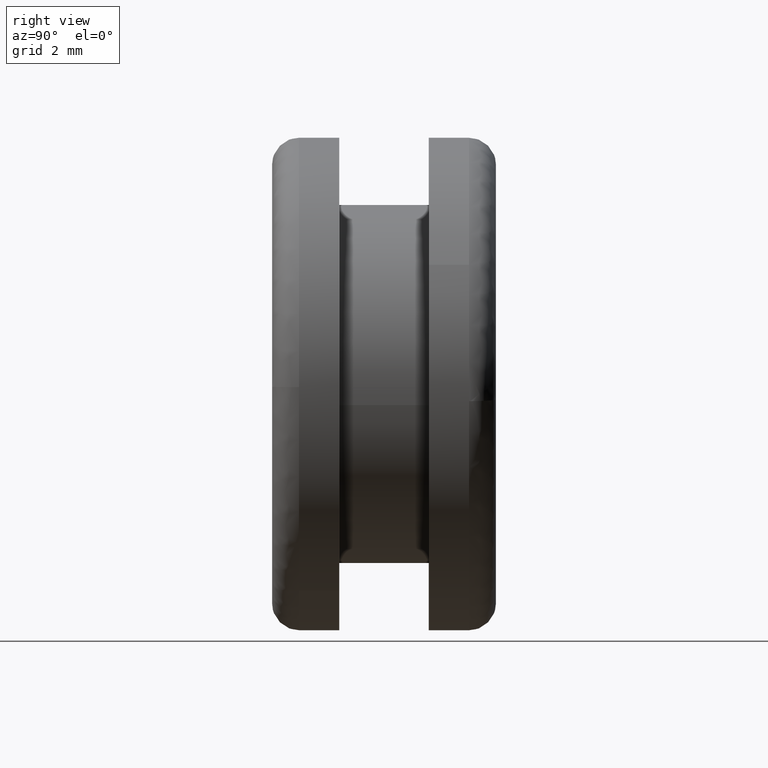
[diagram: clean part render]
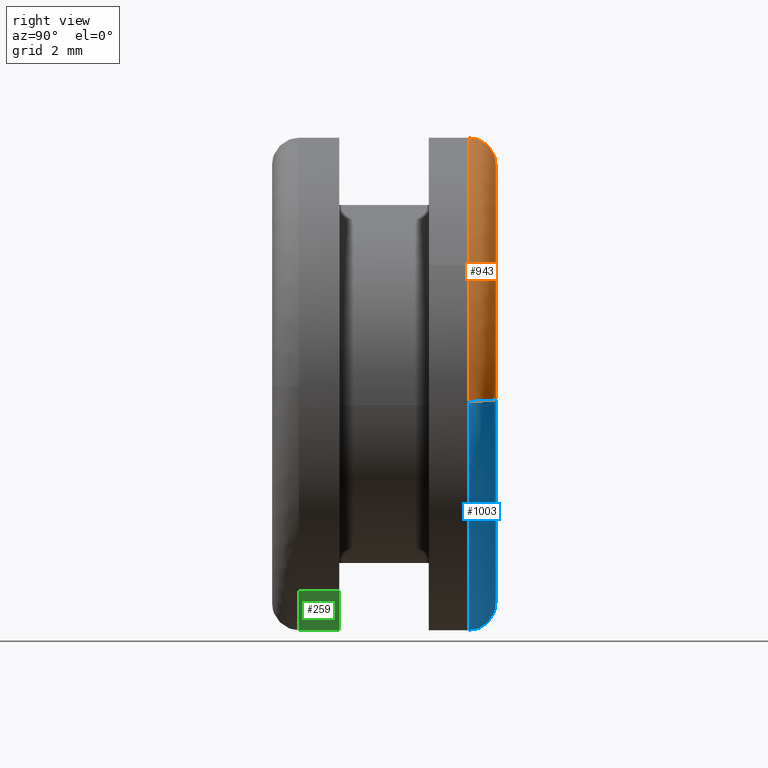
[diagram: same view with three faces highlighted in distinct colors, each labeled with its STEP entity id]
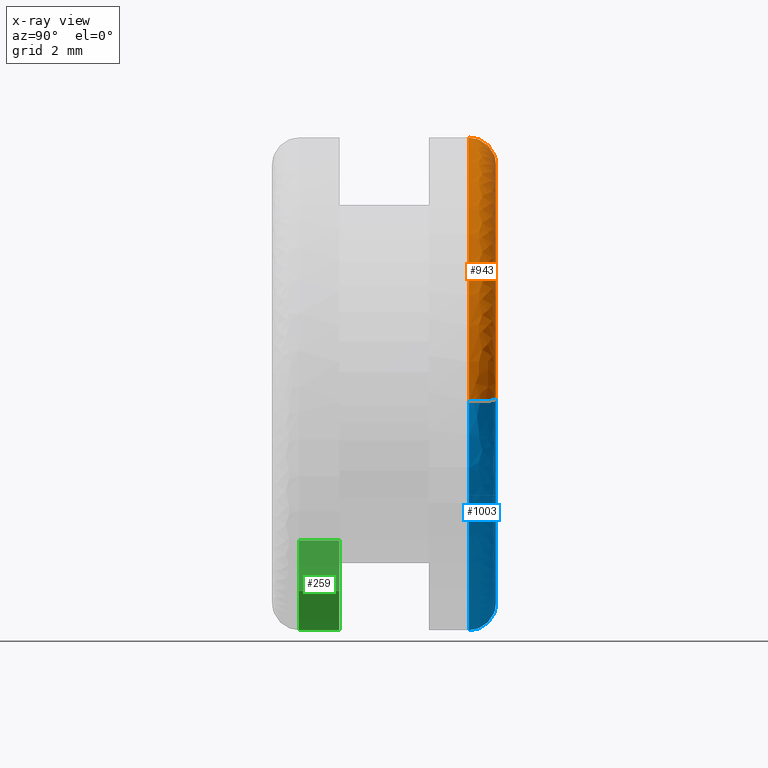
[diagram: x-ray of the same camera — body ghosted, the three highlighted faces saturated]
A machine part, right view with three faces highlighted in distinct colors.
The next image is the same camera in x-ray (body ghosted, the three faces saturated) — at least one of them is partly hidden behind the body in this view.
Their STEP definitions:

[orange] entity #943 — the highlighted face is a freeform B-spline surface patch.
#464=CARTESIAN_POINT('',(4.812205843439302,4.400000000000018,2.663207637486718));
#465=VERTEX_POINT('',#464);
#466=CARTESIAN_POINT('',(0.0,4.400000000000000,5.500000000000000));
#467=VERTEX_POINT('',#466);
#468=CARTESIAN_POINT('',(4.812205843439302,4.400000000000018,2.663207637486718));
#469=CARTESIAN_POINT('',(3.242246591569628,4.400000000000000,5.500000000000001));
#470=CARTESIAN_POINT('',(0.0,4.400000000000000,5.500000000000000));
#478=(BOUNDED_CURVE()B_SPLINE_CURVE(2,(#468,#469,#470),.UNSPECIFIED.,.F.,.U.)B_SPLINE_CURVE_WITH_KNOTS((3,3),(0.332484260513294,0.500000000000000),.UNSPECIFIED.)CURVE()GEOMETRIC_REPRESENTATION_ITEM()RATIONAL_B_SPLINE_CURVE((0.870495160132448,0.803743103439292,1.0))REPRESENTATION_ITEM(''));
#479=EDGE_CURVE('',#465,#467,#478,.T.);
#481=CARTESIAN_POINT('',(-3.715745918085256,4.400000000007310,4.055025557530997));
#482=VERTEX_POINT('',#481);
#483=CARTESIAN_POINT('',(0.0,4.400000000000000,5.500000000000000));
#484=CARTESIAN_POINT('',(-2.138832675736071,4.400000000000001,5.500000000000000));
#485=CARTESIAN_POINT('',(-3.715745918085256,4.400000000007311,4.055025557530997));
#493=(BOUNDED_CURVE()B_SPLINE_CURVE(2,(#483,#484,#485),.UNSPECIFIED.,.F.,.U.)B_SPLINE_CURVE_WITH_KNOTS((3,3),(0.500000000000000,0.618415192420787),.UNSPECIFIED.)CURVE()GEOMETRIC_REPRESENTATION_ITEM()RATIONAL_B_SPLINE_CURVE((1.0,0.861267972541846,0.853959782894757))REPRESENTATION_ITEM(''));
#494=EDGE_CURVE('',#467,#482,#493,.T.);
#563=CARTESIAN_POINT('',(5.486611206122208,4.400000000027498,-0.383532883667365));
#564=VERTEX_POINT('',#563);
#565=CARTESIAN_POINT('',(5.486611206122208,4.400000000027498,-0.383532883667365));
#566=CARTESIAN_POINT('',(5.499999999999999,4.400000000000001,-0.192000137313358));
#567=CARTESIAN_POINT('',(5.500000000000000,4.400000000000000,-1.928755E-016));
#568=CARTESIAN_POINT('',(5.500000000000000,4.400000000000000,1.420417923047572));
#569=CARTESIAN_POINT('',(4.812205843439302,4.400000000000018,2.663207637486718));
#577=(BOUNDED_CURVE()B_SPLINE_CURVE(2,(#565,#566,#567,#568,#569),.UNSPECIFIED.,.F.,.U.)B_SPLINE_CURVE_WITH_KNOTS((3,2,3),(0.237833686534982,0.250000000000000,0.332484260513294),.UNSPECIFIED.)CURVE()GEOMETRIC_REPRESENTATION_ITEM()RATIONAL_B_SPLINE_CURVE((0.972879876386744,0.985746277152550,1.0,0.903363677747256,0.870495160132448))REPRESENTATION_ITEM(''));
#578=EDGE_CURVE('',#564,#465,#577,.T.);
#614=CARTESIAN_POINT('',(-5.499565743120951,4.400000000027498,0.069113219361356));
#615=VERTEX_POINT('',#614);
#616=CARTESIAN_POINT('',(-3.715745918085256,4.400000000007311,4.055025557530997));
#617=CARTESIAN_POINT('',(-5.469672098197592,4.400000000015454,2.447848677929653));
#618=CARTESIAN_POINT('',(-5.499565743120951,4.400000000027498,0.069113219361356));
#626=(BOUNDED_CURVE()B_SPLINE_CURVE(2,(#616,#617,#618),.UNSPECIFIED.,.F.,.U.)B_SPLINE_CURVE_WITH_KNOTS((3,3),(0.618415192420787,0.747784295921543),.UNSPECIFIED.)CURVE()GEOMETRIC_REPRESENTATION_ITEM()RATIONAL_B_SPLINE_CURVE((0.853959782894757,0.845975554490198,0.994854295643585))REPRESENTATION_ITEM(''));
#627=EDGE_CURVE('',#482,#615,#626,.T.);
#848=CARTESIAN_POINT('',(4.846450912742304,4.998547604767667,-0.338783221479301));
#849=CARTESIAN_POINT('',(4.856146733633645,4.998547604767665,-0.200080012378673));
#850=CARTESIAN_POINT('',(4.857893936947161,4.998547604767665,-0.061049309157583));
#851=CARTESIAN_POINT('',(4.918943246104744,4.998547604767664,4.796844627789578));
#852=CARTESIAN_POINT('',(0.061049309157583,4.998547604767665,4.857893936947161));
#853=CARTESIAN_POINT('',(-4.796844627789578,4.998547604767664,4.918943246104744));
#854=CARTESIAN_POINT('',(-4.857893936947161,4.998547604767665,0.061049309157584));
#855=CARTESIAN_POINT('',(5.533020207342917,5.046522521817598,-0.386776724680173));
#856=CARTESIAN_POINT('',(5.544089580351014,5.046522521817596,-0.228424216299388));
#857=CARTESIAN_POINT('',(5.546084300077691,5.046522521817598,-0.069697819558044));
#858=CARTESIAN_POINT('',(5.615782119635735,5.046522521817598,5.476386480519645));
#859=CARTESIAN_POINT('',(0.069697819558044,5.046522521817598,5.546084300077691));
#860=CARTESIAN_POINT('',(-5.476386480519645,5.046522521817598,5.615782119635735));
#861=CARTESIAN_POINT('',(-5.546084300077691,5.046522521817598,0.069697819558045));
#862=CARTESIAN_POINT('',(5.485162386431196,4.358277796135970,-0.383431302012458));
#863=CARTESIAN_POINT('',(5.496136014972224,4.358277796135971,-0.226448462583353));
#864=CARTESIAN_POINT('',(5.498113481384098,4.358277796135970,-0.069094968738537));
#865=CARTESIAN_POINT('',(5.567208450122635,4.358277796135969,5.429018512645561));
#866=CARTESIAN_POINT('',(0.069094968738537,4.358277796135970,5.498113481384098));
#867=CARTESIAN_POINT('',(-5.429018512645559,4.358277796135969,5.567208450122635));
#868=CARTESIAN_POINT('',(-5.498113481384098,4.358277796135970,0.069094968738538));
#876=(BOUNDED_SURFACE()B_SPLINE_SURFACE(2,2,((#848,#855,#862),(#849,#856,#863),(#850,#857,#864),(#851,#858,#865),(#852,#859,#866),(#853,#860,#867),(#854,#861,#868)),.UNSPECIFIED.,.F.,.F.,.U.)B_SPLINE_SURFACE_WITH_KNOTS((3,2,2,3),(3,3),(0.0,0.364411332317165,9.474703328497780,18.584995324678399),(0.0,1.093424524682853),.UNSPECIFIED.)GEOMETRIC_REPRESENTATION_ITEM()RATIONAL_B_SPLINE_SURFACE(((0.889999441113874,0.584039716581436,0.889999258193402),(0.899813013694379,0.590479626410364,0.899812828756935),(0.910479939527730,0.597479527817840,0.910479752397927),(0.643806539374376,0.422481825740131,0.643806407053623),(0.910479939527730,0.597479527817840,0.910479752397927),(0.643806539374376,0.422481825740131,0.643806407053623),(0.910479939527730,0.597479527817840,0.910479752397927)))REPRESENTATION_ITEM('')SURFACE());
#877=ORIENTED_EDGE('',*,*,#479,.F.);
#878=ORIENTED_EDGE('',*,*,#578,.F.);
#879=CARTESIAN_POINT('',(4.888071801949449,5.0,-0.341692932736474));
#880=VERTEX_POINT('',#879);
#881=CARTESIAN_POINT('',(4.888071801949450,5.0,-0.341692932736474));
#882=CARTESIAN_POINT('',(5.486611206067517,4.999999999735635,-0.383532883661093));
#883=CARTESIAN_POINT('',(5.486611206122208,4.400000000027498,-0.383532883667365));
#891=(BOUNDED_CURVE()B_SPLINE_CURVE(2,(#881,#882,#883),.UNSPECIFIED.,.F.,.U.)B_SPLINE_CURVE_WITH_KNOTS((3,3),(-1.725134642829971,-0.274865356812180),.UNSPECIFIED.)CURVE()GEOMETRIC_REPRESENTATION_ITEM()RATIONAL_B_SPLINE_CURVE((0.863472075215113,0.610566959956446,0.863472075339920))REPRESENTATION_ITEM(''));
#892=EDGE_CURVE('',#880,#564,#891,.T.);
#893=ORIENTED_EDGE('',*,*,#892,.F.);
#894=CARTESIAN_POINT('',(0.0,5.0,4.900000000000000));
#895=VERTEX_POINT('',#894);
#896=CARTESIAN_POINT('',(4.888071801949449,5.000000000000001,-0.341692932736474));
#897=CARTESIAN_POINT('',(4.900000000000000,5.0,-0.171054667793707));
#898=CARTESIAN_POINT('',(4.900000000000000,5.0,-1.928755E-016));
#899=CARTESIAN_POINT('',(4.899999999999999,4.999999999999999,4.899999999999999));
#900=CARTESIAN_POINT('',(0.0,5.0,4.900000000000000));
#908=(BOUNDED_CURVE()B_SPLINE_CURVE(2,(#896,#897,#898,#899,#900),.UNSPECIFIED.,.F.,.U.)B_SPLINE_CURVE_WITH_KNOTS((3,2,3),(0.237833686534600,0.250000000000000,0.500000000000000),.UNSPECIFIED.)CURVE()GEOMETRIC_REPRESENTATION_ITEM()RATIONAL_B_SPLINE_CURVE((0.972879876385937,0.985746277152103,1.0,0.707106781186547,1.0))REPRESENTATION_ITEM(''));
#909=EDGE_CURVE('',#880,#895,#908,.T.);
#910=ORIENTED_EDGE('',*,*,#909,.T.);
#911=CARTESIAN_POINT('',(-4.899613116827728,5.0,0.061573595447684));
#912=VERTEX_POINT('',#911);
#913=CARTESIAN_POINT('',(0.0,5.0,4.900000000000000));
#914=CARTESIAN_POINT('',(-4.838808456513483,5.0,4.900000000000000));
#915=CARTESIAN_POINT('',(-4.899613116827728,5.000000000000001,0.061573595447684));
#923=(BOUNDED_CURVE()B_SPLINE_CURVE(2,(#913,#914,#915),.UNSPECIFIED.,.F.,.U.)B_SPLINE_CURVE_WITH_KNOTS((3,3),(0.500000000000000,0.747784295920552),.UNSPECIFIED.)CURVE()GEOMETRIC_REPRESENTATION_ITEM()RATIONAL_B_SPLINE_CURVE((1.0,0.709702639985618,0.994854295641306))REPRESENTATION_ITEM(''));
#924=EDGE_CURVE('',#895,#912,#923,.T.);
#925=ORIENTED_EDGE('',*,*,#924,.T.);
#926=CARTESIAN_POINT('',(-4.899613116827728,5.0,0.061573595447684));
#927=CARTESIAN_POINT('',(-5.499565743065999,4.999999999541493,0.069113219357744));
#928=CARTESIAN_POINT('',(-5.499565743120952,4.400000000027498,0.069113219361356));
#936=(BOUNDED_CURVE()B_SPLINE_CURVE(2,(#926,#927,#928),.UNSPECIFIED.,.F.,.U.)B_SPLINE_CURVE_WITH_KNOTS((3,3),(-1.725134642498153,-0.274865356812179),.UNSPECIFIED.)CURVE()GEOMETRIC_REPRESENTATION_ITEM()RATIONAL_B_SPLINE_CURVE((0.883342149373452,0.624617224284152,0.883342149619523))REPRESENTATION_ITEM(''));
#937=EDGE_CURVE('',#912,#615,#936,.T.);
#938=ORIENTED_EDGE('',*,*,#937,.T.);
#939=ORIENTED_EDGE('',*,*,#627,.F.);
#940=ORIENTED_EDGE('',*,*,#494,.F.);
#941=EDGE_LOOP('',(#877,#878,#893,#910,#925,#938,#939,#940));
#942=FACE_OUTER_BOUND('',#941,.T.);
#943=ADVANCED_FACE('',(#942),#876,.T.);

[blue] entity #1003 — the highlighted face is a freeform B-spline surface patch.
#563=CARTESIAN_POINT('',(5.486611206122208,4.400000000027498,-0.383532883667365));
#564=VERTEX_POINT('',#563);
#614=CARTESIAN_POINT('',(-5.499565743120951,4.400000000027498,0.069113219361356));
#615=VERTEX_POINT('',#614);
#629=CARTESIAN_POINT('',(0.0,4.400000000000000,-5.500000000000000));
#630=VERTEX_POINT('',#629);
#631=CARTESIAN_POINT('',(-5.499565743120951,4.400000000027498,0.069113219361356));
#632=CARTESIAN_POINT('',(-5.500000000000000,4.400000000000000,0.034557973958313));
#633=CARTESIAN_POINT('',(-5.500000000000000,4.400000000000000,-1.928755E-016));
#634=CARTESIAN_POINT('',(-5.500000000000001,4.400000000000001,-5.500000000000001));
#635=CARTESIAN_POINT('',(0.0,4.400000000000000,-5.500000000000000));
#643=(BOUNDED_CURVE()B_SPLINE_CURVE(2,(#631,#632,#633,#634,#635),.UNSPECIFIED.,.F.,.U.)B_SPLINE_CURVE_WITH_KNOTS((3,2,3),(0.747784295921542,0.750000000000000,1.0),.UNSPECIFIED.)CURVE()GEOMETRIC_REPRESENTATION_ITEM()RATIONAL_B_SPLINE_CURVE((0.994854295643583,0.997404141202089,1.0,0.707106781186548,1.0))REPRESENTATION_ITEM(''));
#644=EDGE_CURVE('',#615,#630,#643,.T.);
#646=CARTESIAN_POINT('',(0.0,4.400000000000000,-5.500000000000000));
#647=CARTESIAN_POINT('',(5.128952659961843,4.400000000000001,-5.500000000000000));
#648=CARTESIAN_POINT('',(5.486611206122208,4.400000000027498,-0.383532883667365));
#656=(BOUNDED_CURVE()B_SPLINE_CURVE(2,(#646,#647,#648),.UNSPECIFIED.,.F.,.U.)B_SPLINE_CURVE_WITH_KNOTS((3,3),(0.0,0.237833686534982),.UNSPECIFIED.)CURVE()GEOMETRIC_REPRESENTATION_ITEM()RATIONAL_B_SPLINE_CURVE((1.0,0.721360504033998,0.972879876386744))REPRESENTATION_ITEM(''));
#657=EDGE_CURVE('',#630,#564,#656,.T.);
#879=CARTESIAN_POINT('',(4.888071801949449,5.0,-0.341692932736474));
#880=VERTEX_POINT('',#879);
#881=CARTESIAN_POINT('',(4.888071801949450,5.0,-0.341692932736474));
#882=CARTESIAN_POINT('',(5.486611206067517,4.999999999735635,-0.383532883661093));
#883=CARTESIAN_POINT('',(5.486611206122208,4.400000000027498,-0.383532883667365));
#891=(BOUNDED_CURVE()B_SPLINE_CURVE(2,(#881,#882,#883),.UNSPECIFIED.,.F.,.U.)B_SPLINE_CURVE_WITH_KNOTS((3,3),(-1.725134642829971,-0.274865356812180),.UNSPECIFIED.)CURVE()GEOMETRIC_REPRESENTATION_ITEM()RATIONAL_B_SPLINE_CURVE((0.863472075215113,0.610566959956446,0.863472075339920))REPRESENTATION_ITEM(''));
#892=EDGE_CURVE('',#880,#564,#891,.T.);
#911=CARTESIAN_POINT('',(-4.899613116827728,5.0,0.061573595447684));
#912=VERTEX_POINT('',#911);
#926=CARTESIAN_POINT('',(-4.899613116827728,5.0,0.061573595447684));
#927=CARTESIAN_POINT('',(-5.499565743065999,4.999999999541493,0.069113219357744));
#928=CARTESIAN_POINT('',(-5.499565743120952,4.400000000027498,0.069113219361356));
#936=(BOUNDED_CURVE()B_SPLINE_CURVE(2,(#926,#927,#928),.UNSPECIFIED.,.F.,.U.)B_SPLINE_CURVE_WITH_KNOTS((3,3),(-1.725134642498153,-0.274865356812179),.UNSPECIFIED.)CURVE()GEOMETRIC_REPRESENTATION_ITEM()RATIONAL_B_SPLINE_CURVE((0.883342149373452,0.624617224284152,0.883342149619523))REPRESENTATION_ITEM(''));
#937=EDGE_CURVE('',#912,#615,#936,.T.);
#944=CARTESIAN_POINT('',(-4.857893936947161,4.998547604767665,0.061049309157582));
#945=CARTESIAN_POINT('',(-4.918943246104742,4.998547604767664,-4.796844627789580));
#946=CARTESIAN_POINT('',(-0.061049309157583,4.998547604767665,-4.857893936947161));
#947=CARTESIAN_POINT('',(4.526519540871593,4.998547604767666,-4.915546062053692));
#948=CARTESIAN_POINT('',(4.846450894045051,4.998547604767665,-0.338783488952053));
#949=CARTESIAN_POINT('',(-5.546084300077691,5.046522521817598,0.069697819558043));
#950=CARTESIAN_POINT('',(-5.615782119635735,5.046522521817598,-5.476386480519647));
#951=CARTESIAN_POINT('',(-0.069697819558044,5.046522521817598,-5.546084300077691));
#952=CARTESIAN_POINT('',(5.167765967200014,5.046522521817598,-5.611903675730915));
#953=CARTESIAN_POINT('',(5.533020185996930,5.046522521817599,-0.386777030044277));
#954=CARTESIAN_POINT('',(-5.498113481384098,4.358277796135970,0.069094968738536));
#955=CARTESIAN_POINT('',(-5.567208450122635,4.358277796135969,-5.429018512645564));
#956=CARTESIAN_POINT('',(-0.069094968738537,4.358277796135970,-5.498113481384098));
#957=CARTESIAN_POINT('',(5.123067410371367,4.358277796135968,-5.563363552792171));
#958=CARTESIAN_POINT('',(5.485162365269843,4.358277796135969,-0.383431604735318));
#966=(BOUNDED_SURFACE()B_SPLINE_SURFACE(2,2,((#944,#949,#954),(#945,#950,#955),(#946,#951,#956),(#947,#952,#957),(#948,#953,#958)),.UNSPECIFIED.,.F.,.F.,.U.)B_SPLINE_SURFACE_WITH_KNOTS((3,2,3),(3,3),(0.0,9.110291996180614,17.856172312514001),(0.0,1.093424524682851),.UNSPECIFIED.)GEOMETRIC_REPRESENTATION_ITEM()RATIONAL_B_SPLINE_SURFACE(((0.910479939527730,0.597479527817840,0.910479752397927),(0.643806539374376,0.422481825740131,0.643806407053623),(0.910479939527730,0.597479527817840,0.910479752397927),(0.654473475380510,0.429481733823239,0.654473340867395),(0.889999422395953,0.584039704298272,0.889999239475484)))REPRESENTATION_ITEM('')SURFACE());
#967=ORIENTED_EDGE('',*,*,#657,.F.);
#968=ORIENTED_EDGE('',*,*,#644,.F.);
#969=ORIENTED_EDGE('',*,*,#937,.F.);
#970=CARTESIAN_POINT('',(0.0,5.0,-4.900000000000000));
#971=VERTEX_POINT('',#970);
#972=CARTESIAN_POINT('',(-4.899613116827728,5.0,0.061573595447684));
#973=CARTESIAN_POINT('',(-4.900000000000000,5.000000000000001,0.030788013176639));
#974=CARTESIAN_POINT('',(-4.900000000000000,5.0,-1.928755E-016));
#975=CARTESIAN_POINT('',(-4.899999999999999,4.999999999999999,-4.899999999999999));
#976=CARTESIAN_POINT('',(0.0,5.0,-4.900000000000000));
#984=(BOUNDED_CURVE()B_SPLINE_CURVE(2,(#972,#973,#974,#975,#976),.UNSPECIFIED.,.F.,.U.)B_SPLINE_CURVE_WITH_KNOTS((3,2,3),(0.747784295920553,0.750000000000000,1.0),.UNSPECIFIED.)CURVE()GEOMETRIC_REPRESENTATION_ITEM()RATIONAL_B_SPLINE_CURVE((0.994854295641306,0.997404141200930,1.0,0.707106781186547,1.0))REPRESENTATION_ITEM(''));
#985=EDGE_CURVE('',#912,#971,#984,.T.);
#986=ORIENTED_EDGE('',*,*,#985,.T.);
#987=CARTESIAN_POINT('',(0.0,5.0,-4.900000000000000));
#988=CARTESIAN_POINT('',(4.569430551592206,4.999999999999999,-4.900000000000000));
#989=CARTESIAN_POINT('',(4.888071801949449,5.0,-0.341692932736474));
#997=(BOUNDED_CURVE()B_SPLINE_CURVE(2,(#987,#988,#989),.UNSPECIFIED.,.F.,.U.)B_SPLINE_CURVE_WITH_KNOTS((3,3),(0.0,0.237833686534600),.UNSPECIFIED.)CURVE()GEOMETRIC_REPRESENTATION_ITEM()RATIONAL_B_SPLINE_CURVE((1.0,0.721360504034445,0.972879876385937))REPRESENTATION_ITEM(''));
#998=EDGE_CURVE('',#971,#880,#997,.T.);
#999=ORIENTED_EDGE('',*,*,#998,.T.);
#1000=ORIENTED_EDGE('',*,*,#892,.T.);
#1001=EDGE_LOOP('',(#967,#968,#969,#986,#999,#1000));
#1002=FACE_OUTER_BOUND('',#1001,.T.);
#1003=ADVANCED_FACE('',(#1002),#966,.T.);

[green] entity #259 — the highlighted face is a freeform B-spline surface patch.
#70=CARTESIAN_POINT('',(2.985007899875340,0.599999999998220,-4.619494327053410));
#71=VERTEX_POINT('',#70);
#87=CARTESIAN_POINT('',(2.985007905691947,1.500000000000000,-4.619494323295093));
#88=VERTEX_POINT('',#87);
#89=CARTESIAN_POINT('',(2.985007905691947,1.500000000000000,-4.619494323295093));
#90=CARTESIAN_POINT('',(2.985007899875340,0.599999999998220,-4.619494327053410));
#91=QUASI_UNIFORM_CURVE('',1,(#89,#90),.UNSPECIFIED.,.F.,.U.);
#92=EDGE_CURVE('',#88,#71,#91,.T.);
#111=CARTESIAN_POINT('',(-4.243935634971063,1.500000000000000,-3.498429694337490));
#112=VERTEX_POINT('',#111);
#128=CARTESIAN_POINT('',(-4.243935646368156,0.599999999999966,-3.498429680511704));
#129=VERTEX_POINT('',#128);
#130=CARTESIAN_POINT('',(-4.243935634971063,1.500000000000000,-3.498429694337490));
#131=CARTESIAN_POINT('',(-4.243935646368156,0.599999999999966,-3.498429680511704));
#132=QUASI_UNIFORM_CURVE('',1,(#130,#131),.UNSPECIFIED.,.F.,.U.);
#133=EDGE_CURVE('',#112,#129,#132,.T.);
#185=CARTESIAN_POINT('',(-4.243935208632458,1.522500000000269,-3.498430211527701));
#186=CARTESIAN_POINT('',(-1.128612139344792,1.522500000000270,-7.277619293662170));
#187=CARTESIAN_POINT('',(2.985008738409040,1.522500000000269,-4.619493785213013));
#188=CARTESIAN_POINT('',(-4.243935208632458,0.576937499988974,-3.498430211527701));
#189=CARTESIAN_POINT('',(-1.128612139344792,0.576937499988974,-7.277619293662170));
#190=CARTESIAN_POINT('',(2.985008738409040,0.576937499988974,-4.619493785213013));
#198=(BOUNDED_SURFACE()B_SPLINE_SURFACE(2,1,((#185,#188),(#186,#189),(#187,#190)),.UNSPECIFIED.,.F.,.F.,.U.)B_SPLINE_SURFACE_WITH_KNOTS((3,3),(2,2),(0.0,8.374486759889559),(0.0,1.0),.UNSPECIFIED.)GEOMETRIC_REPRESENTATION_ITEM()RATIONAL_B_SPLINE_SURFACE(((1.0,1.0),(0.730538238691624,0.730538238691624),(0.956886118190660,0.956886118190660)))REPRESENTATION_ITEM('')SURFACE());
#199=CARTESIAN_POINT('',(0.0,0.599999999999979,-5.500000000000000));
#200=VERTEX_POINT('',#199);
#201=CARTESIAN_POINT('',(0.0,0.599999999999979,-5.500000000000000));
#202=CARTESIAN_POINT('',(1.622367425457560,0.599999999999979,-5.500000000000000));
#203=CARTESIAN_POINT('',(2.985007899875340,0.599999999998220,-4.619494327053409));
#211=(BOUNDED_CURVE()B_SPLINE_CURVE(2,(#201,#202,#203),.UNSPECIFIED.,.F.,.U.)B_SPLINE_CURVE_WITH_KNOTS((3,3),(0.0,0.092934687548090),.UNSPECIFIED.)CURVE()GEOMETRIC_REPRESENTATION_ITEM()RATIONAL_B_SPLINE_CURVE((1.0,0.891120240898469,0.863190132936235))REPRESENTATION_ITEM(''));
#212=EDGE_CURVE('',#200,#71,#211,.T.);
#213=ORIENTED_EDGE('',*,*,#212,.F.);
#214=CARTESIAN_POINT('',(-4.243935646368156,0.599999999999966,-3.498429680511704));
#215=CARTESIAN_POINT('',(-2.593969244496337,0.599999999999979,-5.500000000000001));
#216=CARTESIAN_POINT('',(0.0,0.599999999999979,-5.500000000000000));
#224=(BOUNDED_CURVE()B_SPLINE_CURVE(2,(#214,#215,#216),.UNSPECIFIED.,.F.,.U.)B_SPLINE_CURVE_WITH_KNOTS((3,3),(0.860504588013076,1.0),.UNSPECIFIED.)CURVE()GEOMETRIC_REPRESENTATION_ITEM()RATIONAL_B_SPLINE_CURVE((0.855522729322274,0.836570959093765,1.0))REPRESENTATION_ITEM(''));
#225=EDGE_CURVE('',#129,#200,#224,.T.);
#226=ORIENTED_EDGE('',*,*,#225,.F.);
#227=ORIENTED_EDGE('',*,*,#133,.F.);
#228=CARTESIAN_POINT('',(0.0,1.500000000000000,-5.500000000000000));
#229=VERTEX_POINT('',#228);
#230=CARTESIAN_POINT('',(-4.243935634971063,1.500000000000000,-3.498429694337489));
#231=CARTESIAN_POINT('',(-2.593969222593032,1.500000000000000,-5.500000000000002));
#232=CARTESIAN_POINT('',(0.0,1.500000000000000,-5.500000000000000));
#240=(BOUNDED_CURVE()B_SPLINE_CURVE(2,(#230,#231,#232),.UNSPECIFIED.,.F.,.U.)B_SPLINE_CURVE_WITH_KNOTS((3,3),(0.860504588998465,1.0),.UNSPECIFIED.)CURVE()GEOMETRIC_REPRESENTATION_ITEM()RATIONAL_B_SPLINE_CURVE((0.855522729054526,0.836570960248220,1.0))REPRESENTATION_ITEM(''));
#241=EDGE_CURVE('',#112,#229,#240,.T.);
#242=ORIENTED_EDGE('',*,*,#241,.T.);
#243=CARTESIAN_POINT('',(0.0,1.500000000000000,-5.500000000000000));
#244=CARTESIAN_POINT('',(1.622367432985426,1.500000000000000,-5.500000000000001));
#245=CARTESIAN_POINT('',(2.985007905691948,1.500000000000000,-4.619494323295093));
#253=(BOUNDED_CURVE()B_SPLINE_CURVE(2,(#243,#244,#245),.UNSPECIFIED.,.F.,.U.)B_SPLINE_CURVE_WITH_KNOTS((3,3),(0.0,0.092934687932361),.UNSPECIFIED.)CURVE()GEOMETRIC_REPRESENTATION_ITEM()RATIONAL_B_SPLINE_CURVE((1.0,0.891120240448269,0.863190132705262))REPRESENTATION_ITEM(''));
#254=EDGE_CURVE('',#229,#88,#253,.T.);
#255=ORIENTED_EDGE('',*,*,#254,.T.);
#256=ORIENTED_EDGE('',*,*,#92,.T.);
#257=EDGE_LOOP('',(#213,#226,#227,#242,#255,#256));
#258=FACE_OUTER_BOUND('',#257,.T.);
#259=ADVANCED_FACE('',(#258),#198,.T.);